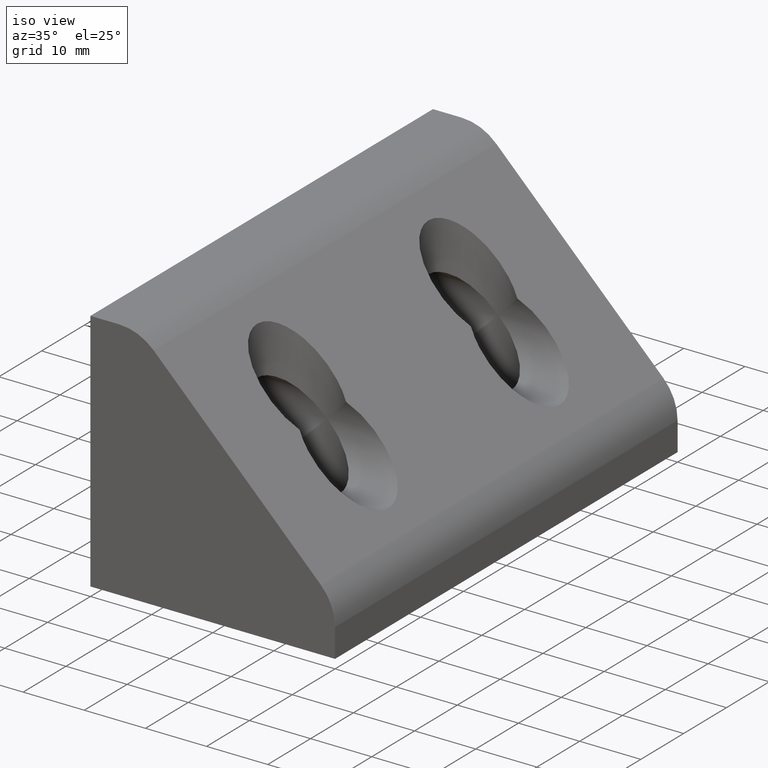
[diagram: clean part render]
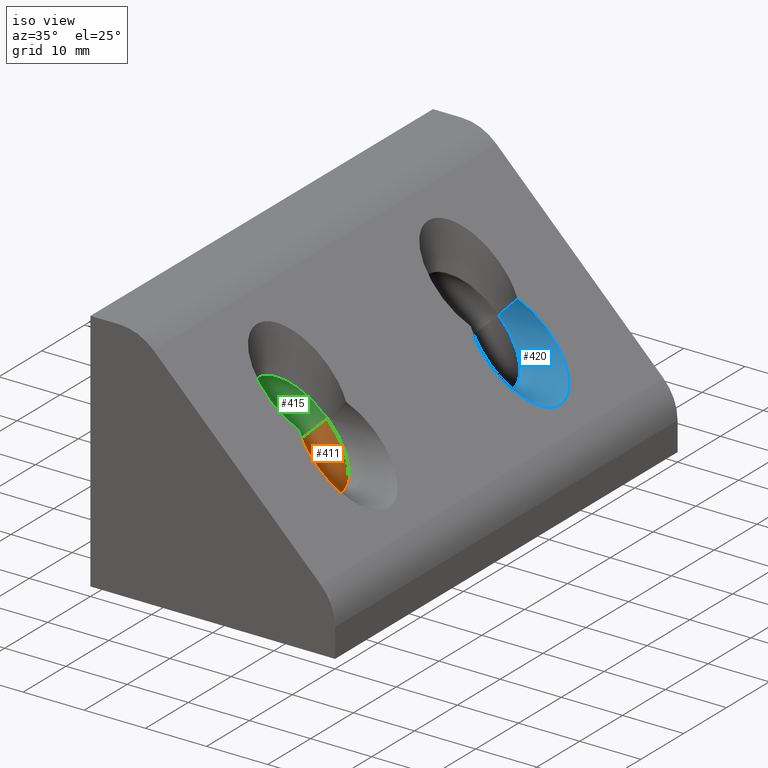
[diagram: same view with three faces highlighted in distinct colors, each labeled with its STEP entity id]
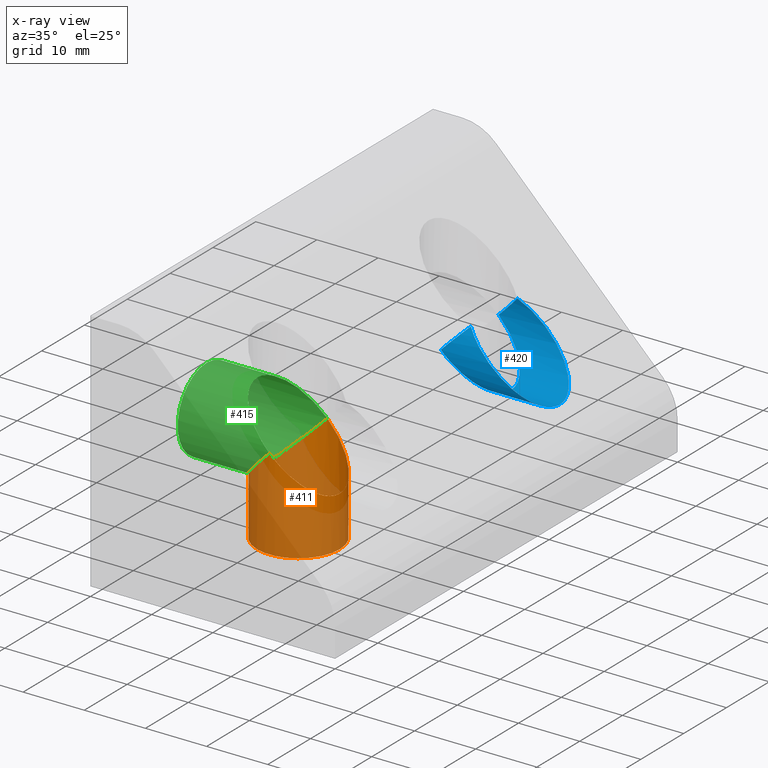
[diagram: x-ray of the same camera — body ghosted, the three highlighted faces saturated]
A machine part, iso view with three faces highlighted in distinct colors.
The next image is the same camera in x-ray (body ghosted, the three faces saturated) — at least one of them is partly hidden behind the body in this view.
Their STEP definitions:

[orange] entity #411 — the highlighted cylindrical surface (bore or boss wall) has radius 6.75 mm, axis along (0, 0, -1).
#38=FACE_OUTER_BOUND('',#63,.T.);
#63=EDGE_LOOP('',(#287,#288,#289,#290,#291,#292));
#99=CIRCLE('',#469,6.75);
#114=LINE('',#686,#139);
#139=VECTOR('',#544,6.75);
#165=ELLIPSE('',#466,9.5459415460184,6.75);
#166=ELLIPSE('',#467,9.54594154601838,6.75);
#167=ELLIPSE('',#468,9.5459415460184,6.75);
#186=VERTEX_POINT('',#679);
#187=VERTEX_POINT('',#680);
#188=VERTEX_POINT('',#682);
#189=VERTEX_POINT('',#685);
#226=EDGE_CURVE('',#186,#187,#165,.T.);
#227=EDGE_CURVE('',#188,#186,#166,.T.);
#228=EDGE_CURVE('',#187,#188,#167,.T.);
#229=EDGE_CURVE('',#187,#189,#114,.T.);
#230=EDGE_CURVE('',#189,#189,#99,.T.);
#287=ORIENTED_EDGE('',*,*,#226,.F.);
#288=ORIENTED_EDGE('',*,*,#227,.F.);
#289=ORIENTED_EDGE('',*,*,#228,.F.);
#290=ORIENTED_EDGE('',*,*,#229,.T.);
#291=ORIENTED_EDGE('',*,*,#230,.F.);
#292=ORIENTED_EDGE('',*,*,#229,.F.);
#397=CYLINDRICAL_SURFACE('',#465,6.75);
#411=ADVANCED_FACE('',(#38),#397,.F.);
#465=AXIS2_PLACEMENT_3D('',#678,#536,#537);
#466=AXIS2_PLACEMENT_3D('',#681,#538,#539);
#467=AXIS2_PLACEMENT_3D('',#683,#540,#541);
#468=AXIS2_PLACEMENT_3D('',#684,#542,#543);
#469=AXIS2_PLACEMENT_3D('',#687,#545,#546);
#536=DIRECTION('center_axis',(0.,0.,-1.));
#537=DIRECTION('ref_axis',(-1.,0.,0.));
#538=DIRECTION('center_axis',(-0.707106781186547,3.48909435263061E-16,-0.707106781186548));
#539=DIRECTION('ref_axis',(0.707106781186548,1.73988069209882E-15,-0.707106781186547));
#540=DIRECTION('center_axis',(0.707106781186548,-3.48909435263061E-16,-0.707106781186547));
#541=DIRECTION('ref_axis',(0.707106781186547,1.91936085427119E-15,0.707106781186548));
#542=DIRECTION('center_axis',(-0.707106781186547,3.48909435263061E-16,-0.707106781186548));
#543=DIRECTION('ref_axis',(0.707106781186548,1.73988069209882E-15,-0.707106781186547));
#544=DIRECTION('',(0.,0.,-1.));
#545=DIRECTION('center_axis',(0.,0.,1.));
#546=DIRECTION('ref_axis',(0.,-1.,0.));
#678=CARTESIAN_POINT('Origin',(20.,-20.,20.00000001));
#679=CARTESIAN_POINT('',(20.,-13.25,20.));
#680=CARTESIAN_POINT('',(26.75,-20.,13.25));
#681=CARTESIAN_POINT('Origin',(20.,-20.,20.));
#682=CARTESIAN_POINT('',(20.,-26.75,20.));
#683=CARTESIAN_POINT('Origin',(20.,-20.,20.));
#684=CARTESIAN_POINT('Origin',(20.,-20.,20.));
#685=CARTESIAN_POINT('',(26.75,-20.,5.));
#686=CARTESIAN_POINT('',(26.75,-20.,20.00000001));
#687=CARTESIAN_POINT('Origin',(20.,-20.,5.));

[blue] entity #420 — the highlighted cylindrical surface (partial cylindrical patch) has radius 6.75 mm, axis along (-1, 0, 0).
#47=FACE_OUTER_BOUND('',#72,.T.);
#72=EDGE_LOOP('',(#332,#333,#334,#335,#336));
#162=ELLIPSE('',#458,9.54594154601841,6.75);
#164=ELLIPSE('',#460,9.54594154601841,6.75);
#173=ELLIPSE('',#489,9.54594154601901,6.75000000000072);
#174=ELLIPSE('',#490,9.5459415460419,6.75000000002809);
#179=ELLIPSE('',#498,9.54594154602785,6.75000000001158);
#180=VERTEX_POINT('',#663);
#181=VERTEX_POINT('',#664);
#182=VERTEX_POINT('',#666);
#200=VERTEX_POINT('',#721);
#201=VERTEX_POINT('',#722);
#218=EDGE_CURVE('',#180,#181,#162,.T.);
#220=EDGE_CURVE('',#181,#182,#164,.T.);
#249=EDGE_CURVE('',#182,#200,#173,.T.);
#250=EDGE_CURVE('',#201,#180,#174,.T.);
#255=EDGE_CURVE('',#201,#200,#179,.T.);
#332=ORIENTED_EDGE('',*,*,#255,.F.);
#333=ORIENTED_EDGE('',*,*,#250,.T.);
#334=ORIENTED_EDGE('',*,*,#218,.T.);
#335=ORIENTED_EDGE('',*,*,#220,.T.);
#336=ORIENTED_EDGE('',*,*,#249,.T.);
#406=CYLINDRICAL_SURFACE('',#497,6.75000000000001);
#420=ADVANCED_FACE('',(#47),#406,.F.);
#458=AXIS2_PLACEMENT_3D('',#665,#520,#521);
#460=AXIS2_PLACEMENT_3D('',#668,#524,#525);
#489=AXIS2_PLACEMENT_3D('',#724,#590,#591);
#490=AXIS2_PLACEMENT_3D('',#725,#592,#593);
#497=AXIS2_PLACEMENT_3D('',#734,#606,#607);
#498=AXIS2_PLACEMENT_3D('',#735,#608,#609);
#520=DIRECTION('center_axis',(-0.707106781186547,0.,-0.707106781186548));
#521=DIRECTION('ref_axis',(0.707106781186548,-8.07660729775599E-16,-0.707106781186547));
#524=DIRECTION('center_axis',(-0.707106781186547,0.,-0.707106781186548));
#525=DIRECTION('ref_axis',(0.707106781186548,-8.07660729775599E-16,-0.707106781186547));
#590=DIRECTION('center_axis',(-0.70710678118655,1.2868327747778E-14,0.707106781186545));
#591=DIRECTION('ref_axis',(0.707106781186545,-6.75823930133867E-14,0.70710678118655));
#592=DIRECTION('center_axis',(-0.707106781186549,-4.02135242118085E-15,
0.707106781186547));
#593=DIRECTION('ref_axis',(0.707106781186546,2.09357750650917E-12,0.707106781186548));
#606=DIRECTION('center_axis',(-1.,0.,0.));
#607=DIRECTION('ref_axis',(0.,-1.07187543957223E-15,-1.));
#608=DIRECTION('center_axis',(-0.707106781186552,-2.73451964640282E-14,
-0.707106781186543));
#609=DIRECTION('ref_axis',(0.707106781186543,8.41442404316365E-13,-0.707106781186552));
#663=CARTESIAN_POINT('',(20.,26.75,20.));
#664=CARTESIAN_POINT('',(26.75,20.,13.25));
#665=CARTESIAN_POINT('Origin',(20.,20.,20.));
#666=CARTESIAN_POINT('',(20.,13.25,20.));
#668=CARTESIAN_POINT('Origin',(20.,20.,20.));
#721=CARTESIAN_POINT('',(24.,14.5628592072671,24.));
#722=CARTESIAN_POINT('',(24.,25.4371407927329,24.));
#724=CARTESIAN_POINT('Origin',(19.9999999999997,20.0000000000007,19.9999999999996));
#725=CARTESIAN_POINT('Origin',(19.9999999999896,19.9999999999719,19.9999999999895));
#734=CARTESIAN_POINT('Origin',(28.00000001,20.,20.));
#735=CARTESIAN_POINT('Origin',(28.000000000004,20.0000000000116,19.9999999999957));

[green] entity #415 — the highlighted cylindrical surface (bore or boss wall) has radius 6.75 mm, axis along (-1, 0, 0).
#42=FACE_OUTER_BOUND('',#67,.T.);
#67=EDGE_LOOP('',(#305,#306,#307,#308,#309,#310));
#106=CIRCLE('',#481,6.75);
#118=LINE('',#710,#143);
#143=VECTOR('',#572,6.75);
#166=ELLIPSE('',#467,9.54594154601838,6.75);
#168=ELLIPSE('',#480,9.54594154601839,6.75000000000001);
#169=ELLIPSE('',#482,9.54594154601839,6.75000000000001);
#186=VERTEX_POINT('',#679);
#188=VERTEX_POINT('',#682);
#196=VERTEX_POINT('',#707);
#197=VERTEX_POINT('',#709);
#227=EDGE_CURVE('',#188,#186,#166,.T.);
#240=EDGE_CURVE('',#186,#196,#168,.T.);
#241=EDGE_CURVE('',#196,#197,#118,.T.);
#242=EDGE_CURVE('',#197,#197,#106,.T.);
#243=EDGE_CURVE('',#196,#188,#169,.T.);
#305=ORIENTED_EDGE('',*,*,#240,.T.);
#306=ORIENTED_EDGE('',*,*,#241,.T.);
#307=ORIENTED_EDGE('',*,*,#242,.F.);
#308=ORIENTED_EDGE('',*,*,#241,.F.);
#309=ORIENTED_EDGE('',*,*,#243,.T.);
#310=ORIENTED_EDGE('',*,*,#227,.T.);
#401=CYLINDRICAL_SURFACE('',#479,6.75);
#415=ADVANCED_FACE('',(#42),#401,.F.);
#467=AXIS2_PLACEMENT_3D('',#683,#540,#541);
#479=AXIS2_PLACEMENT_3D('',#706,#568,#569);
#480=AXIS2_PLACEMENT_3D('',#708,#570,#571);
#481=AXIS2_PLACEMENT_3D('',#711,#573,#574);
#482=AXIS2_PLACEMENT_3D('',#712,#575,#576);
#540=DIRECTION('center_axis',(0.707106781186548,-3.48909435263061E-16,-0.707106781186547));
#541=DIRECTION('ref_axis',(0.707106781186547,1.91936085427119E-15,0.707106781186548));
#568=DIRECTION('center_axis',(-1.,0.,0.));
#569=DIRECTION('ref_axis',(0.,0.,-1.));
#570=DIRECTION('center_axis',(0.707106781186548,-3.48909435263061E-16,0.707106781186547));
#571=DIRECTION('ref_axis',(0.707106781186548,-1.71511242971904E-15,-0.707106781186548));
#572=DIRECTION('',(-1.,0.,0.));
#573=DIRECTION('center_axis',(1.,0.,0.));
#574=DIRECTION('ref_axis',(0.,1.,0.));
#575=DIRECTION('center_axis',(0.707106781186548,-3.48909435263061E-16,0.707106781186547));
#576=DIRECTION('ref_axis',(0.707106781186548,-1.71511242971904E-15,-0.707106781186548));
#679=CARTESIAN_POINT('',(20.,-13.25,20.));
#682=CARTESIAN_POINT('',(20.,-26.75,20.));
#683=CARTESIAN_POINT('Origin',(20.,-20.,20.));
#706=CARTESIAN_POINT('Origin',(20.00000001,-20.,20.));
#707=CARTESIAN_POINT('',(13.25,-20.,26.75));
#708=CARTESIAN_POINT('Origin',(20.,-20.,20.));
#709=CARTESIAN_POINT('',(5.,-20.,26.75));
#710=CARTESIAN_POINT('',(20.00000001,-20.,26.75));
#711=CARTESIAN_POINT('Origin',(5.,-20.,20.));
#712=CARTESIAN_POINT('Origin',(20.,-20.,20.));